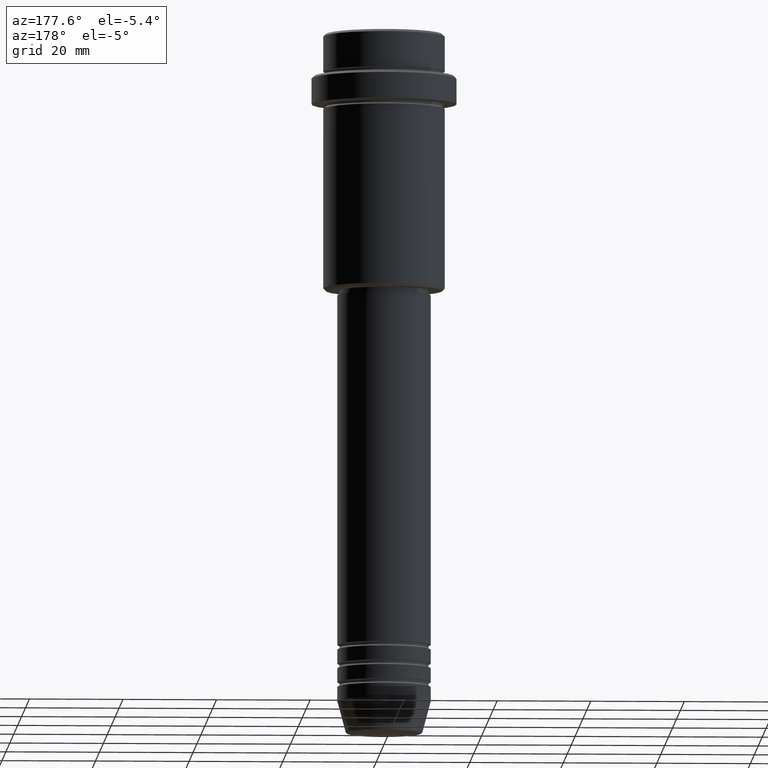
[diagram: clean part render]
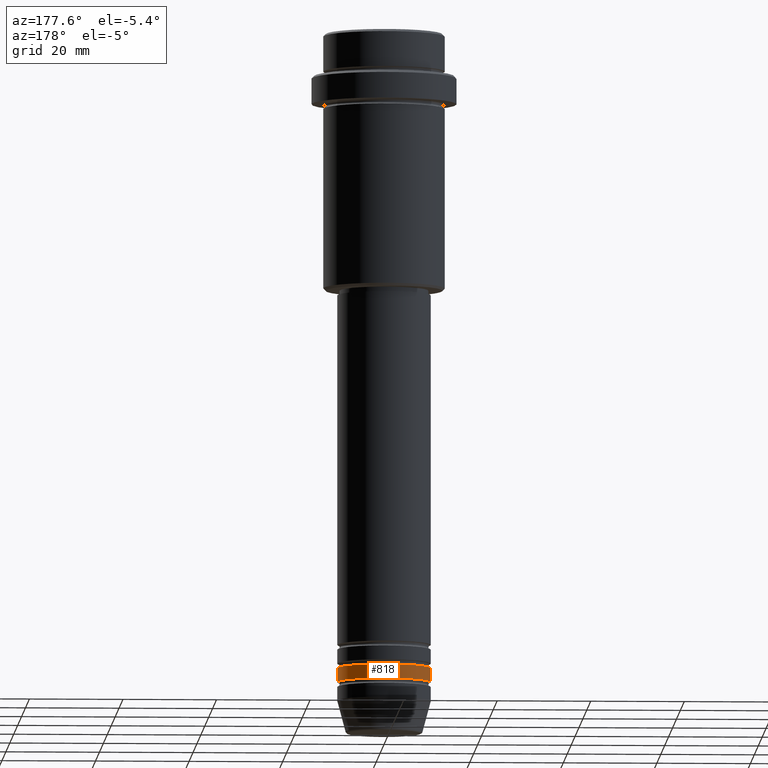
[diagram: same view with one face highlighted and labeled with its STEP entity id]
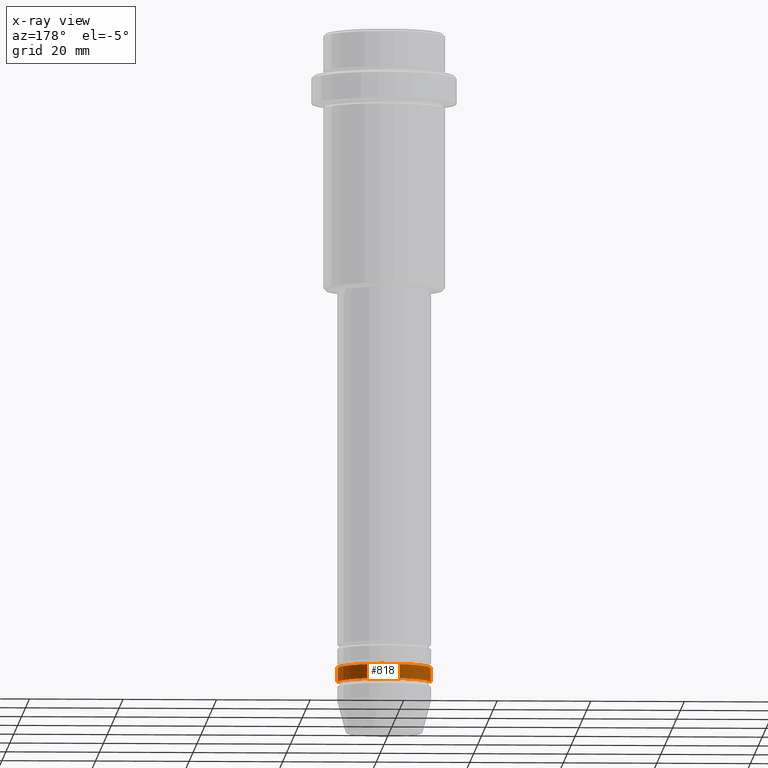
[diagram: x-ray of the same camera — body ghosted, the highlighted face saturated]
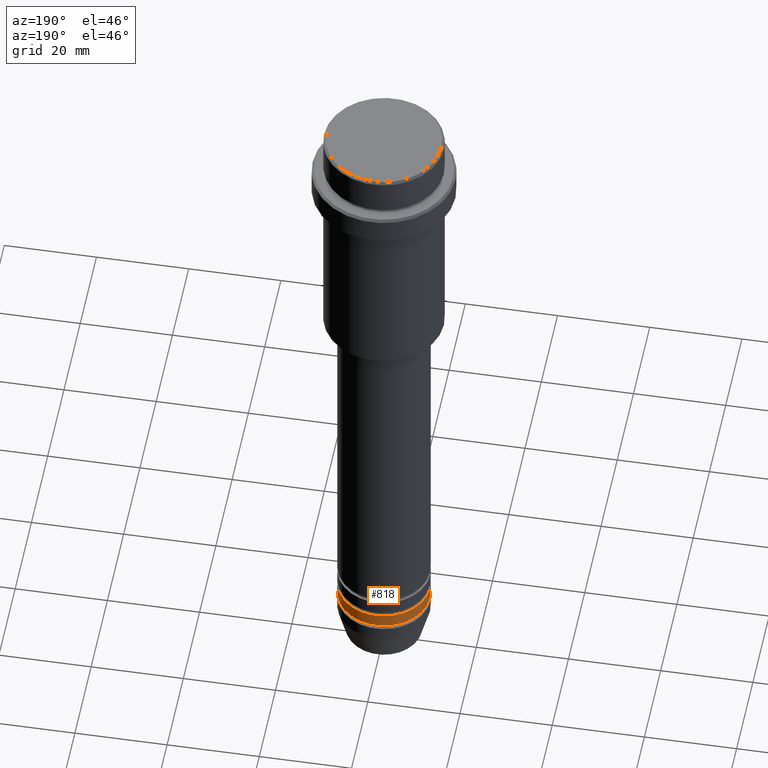
[diagram: same view with one face highlighted and labeled with its STEP entity id]
A machine part, auxiliary view. The second image highlights one B-rep face of the part: STEP entity #818.
The next image is the same camera in x-ray: the body ghosted, the highlighted face saturated — about 0% of this face is hidden behind the body in this view.
A second angle (auxiliary view) of the same face is appended — the face is thin or edge-on in the first view.
In plain terms, the highlighted cylindrical surface (partial cylindrical patch) has radius 10 mm, axis along (-0, -0, 1).
Its self-contained STEP definition (entity closure, byte-faithful):
#40 = CIRCLE ( 'NONE', #749, 10.00000000000000000 ) ;
#46 = ORIENTED_EDGE ( 'NONE', *, *, #1100, .T. ) ;
#48 = CARTESIAN_POINT ( 'NONE',  ( 10.00000000000000000, 0.000000000000000000, -138.9999999999998579 ) ) ;
#166 = VERTEX_POINT ( 'NONE', #1175 ) ;
#197 = DIRECTION ( 'NONE',  ( -0.000000000000000000, -0.000000000000000000, 1.000000000000000000 ) ) ;
#244 = CARTESIAN_POINT ( 'NONE',  ( 10.00000000000000000, 0.000000000000000000, -135.9999999999998579 ) ) ;
#310 = EDGE_CURVE ( 'NONE', #459, #166, #799, .T. ) ;
#341 = DIRECTION ( 'NONE',  ( -0.000000000000000000, -0.000000000000000000, 1.000000000000000000 ) ) ;
#364 = EDGE_LOOP ( 'NONE', ( #46, #809, #1031, #533 ) ) ;
#380 = VERTEX_POINT ( 'NONE', #48 ) ;
#381 = CARTESIAN_POINT ( 'NONE',  ( 0.000000000000000000, 0.000000000000000000, 0.000000000000000000 ) ) ;
#411 = DIRECTION ( 'NONE',  ( -0.000000000000000000, -0.000000000000000000, 1.000000000000000000 ) ) ;
#459 = VERTEX_POINT ( 'NONE', #1132 ) ;
#533 = ORIENTED_EDGE ( 'NONE', *, *, #1011, .F. ) ;
#579 = CIRCLE ( 'NONE', #1140, 10.00000000000000000 ) ;
#588 = DIRECTION ( 'NONE',  ( -0.000000000000000000, -0.000000000000000000, 1.000000000000000000 ) ) ;
#607 = EDGE_CURVE ( 'NONE', #1168, #166, #579, .T. ) ;
#694 = CARTESIAN_POINT ( 'NONE',  ( -10.00000000000000000, 1.224646799147353256E-15, 0.000000000000000000 ) ) ;
#721 = CYLINDRICAL_SURFACE ( 'NONE', #1274, 10.00000000000000000 ) ;
#749 = AXIS2_PLACEMENT_3D ( 'NONE', #1320, #875, #1088 ) ;
#799 = LINE ( 'NONE', #694, #928 ) ;
#809 = ORIENTED_EDGE ( 'NONE', *, *, #310, .T. ) ;
#818 = ADVANCED_FACE ( 'NONE', ( #1343 ), #721, .T. ) ;
#853 = DIRECTION ( 'NONE',  ( 1.000000000000000000, 0.000000000000000000, 0.000000000000000000 ) ) ;
#875 = DIRECTION ( 'NONE',  ( -0.000000000000000000, -0.000000000000000000, 1.000000000000000000 ) ) ;
#928 = VECTOR ( 'NONE', #341, 1000.000000000000000 ) ;
#961 = CARTESIAN_POINT ( 'NONE',  ( 0.000000000000000000, 0.000000000000000000, -135.9999999999998579 ) ) ;
#1011 = EDGE_CURVE ( 'NONE', #380, #1168, #1173, .T. ) ;
#1031 = ORIENTED_EDGE ( 'NONE', *, *, #607, .F. ) ;
#1066 = CARTESIAN_POINT ( 'NONE',  ( 10.00000000000000000, 0.000000000000000000, 0.000000000000000000 ) ) ;
#1088 = DIRECTION ( 'NONE',  ( 1.000000000000000000, 0.000000000000000000, 0.000000000000000000 ) ) ;
#1100 = EDGE_CURVE ( 'NONE', #380, #459, #40, .T. ) ;
#1132 = CARTESIAN_POINT ( 'NONE',  ( -10.00000000000000000, 1.224646799147353256E-15, -138.9999999999998579 ) ) ;
#1140 = AXIS2_PLACEMENT_3D ( 'NONE', #961, #411, #853 ) ;
#1143 = DIRECTION ( 'NONE',  ( 1.000000000000000000, 0.000000000000000000, 0.000000000000000000 ) ) ;
#1168 = VERTEX_POINT ( 'NONE', #244 ) ;
#1173 = LINE ( 'NONE', #1066, #1405 ) ;
#1175 = CARTESIAN_POINT ( 'NONE',  ( -10.00000000000000000, 1.224646799147353256E-15, -135.9999999999998579 ) ) ;
#1274 = AXIS2_PLACEMENT_3D ( 'NONE', #381, #588, #1143 ) ;
#1320 = CARTESIAN_POINT ( 'NONE',  ( 0.000000000000000000, 0.000000000000000000, -138.9999999999998579 ) ) ;
#1343 = FACE_OUTER_BOUND ( 'NONE', #364, .T. ) ;
#1405 = VECTOR ( 'NONE', #197, 1000.000000000000000 ) ;